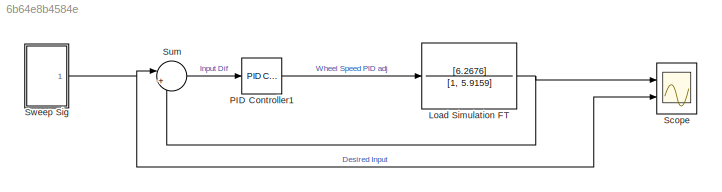
MODEL slx_6b64e8b4584e
KIND model
CONFIG AbsTol = auto
CONFIG EnableMultiTasking = off
CONFIG FixedStep = 0.002
CONFIG MaxStep = auto
CONFIG MinStep = auto
CONFIG RelTol = 1e-3
CONFIG SampleTimeConstraint = Unconstrained
CONFIG SolverName = FixedStepAuto
CONFIG StartTime = 0.0
CONFIG StopTime = 30
BLOCK [TransferFcn] Load Simulation FT
  Denominator = [1, 5.9159]
  Numerator = [6.2676]
BLOCK [Reference] PID Controller1  REF=pid_lib/PID Controller
  Ports = [1, 1]
  SourceBlock = pid_lib/PID Controller
  SourceProductBaseCode = SL
  SourceType = PID 1dof
BLOCK [Scope] Scope
  Floating = off
  NumInputPorts = 2
  Ports = [2]
  ScopeSpecificationString = Simulink.scopes.TimeScopeBlockCfg('CurrentConfiguration', extmgr.ConfigurationSet(extmgr.Configuration('Core','General UI',true),extmgr.Configuration('Core','Source UI',true),extmgr.Configuration('Sources','WiredSimulink',true),extmgr.Configuration('Visuals','Time Domain',true,'SerializedDisplays',{struct('MinYLimReal','-0.125','MaxYLimReal','1.125','YLabelReal','','MinYLimMag','0.00000','MaxYLimM...<+1398ch>
BLOCK [Sum] Sum
  Inputs = |+-
  Ports = [2, 1]
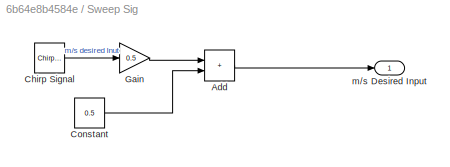
BLOCK [SubSystem] Sweep Sig
  Ports = [0, 1]
  RequestExecContextInheritance = off
BLOCK [Sum] Sweep Sig/Add
  IconShape = rectangular
  Ports = [2, 1]
BLOCK [Reference] Sweep Sig/Chirp Signal  REF=simulink/Sources/Chirp Signal
  Ports = [0, 1]
  SourceBlock = simulink/Sources/Chirp Signal
  SourceProductBaseCode = SL
  SourceType = chirp
BLOCK [Constant] Sweep Sig/Constant
  Value = 0.5
BLOCK [Gain] Sweep Sig/Gain
  Gain = 0.5
BLOCK [Outport] Sweep Sig/m//s Desired Input
NET Load Simulation FT:1 -> Scope:1, Sum:2
LINE PID Controller1:1 -> Load Simulation FT:1
LINE Sum:1 -> PID Controller1:1
LINE Sweep Sig/Add:1 -> Sweep Sig/m//s Desired Input:1
LINE Sweep Sig/Chirp Signal:1 -> Sweep Sig/Gain:1
LINE Sweep Sig/Constant:1 -> Sweep Sig/Add:2
LINE Sweep Sig/Gain:1 -> Sweep Sig/Add:1
NET Sweep Sig:1 -> Scope:2, Sum:1
note: NET lines group one-source signal fan-out (src -> all destinations, sorted); 1:1 wires keep LINE
